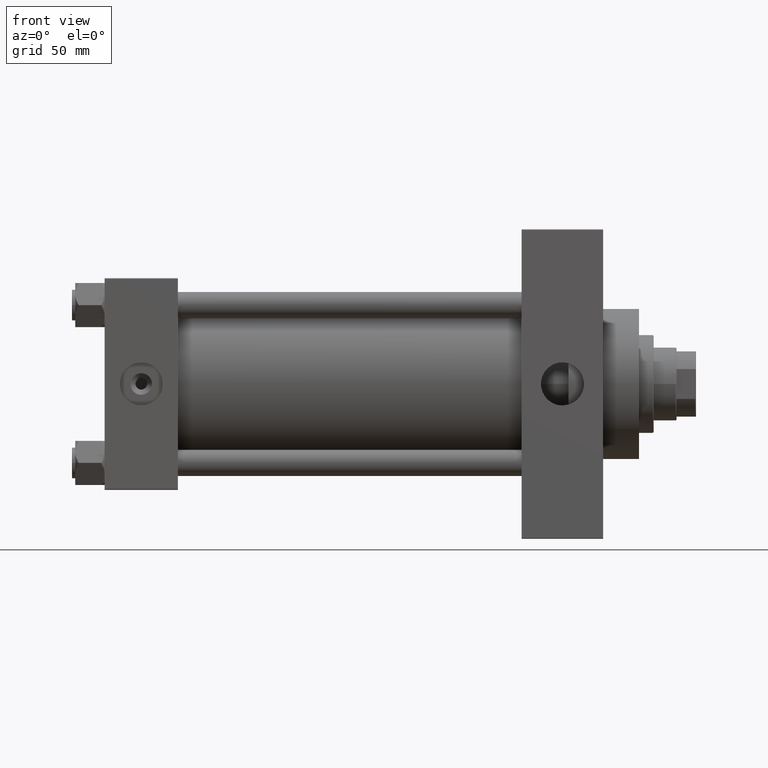
[diagram: clean part render]
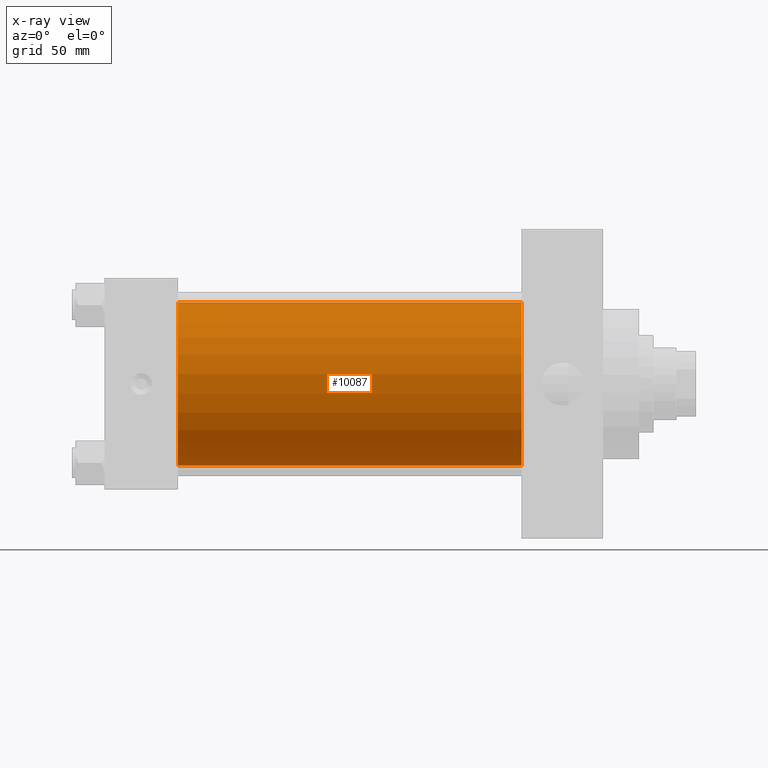
[diagram: x-ray — body ghosted, one internal face saturated and labeled with its STEP entity id]
A machine part, front view, then the same camera in x-ray: the body is ghosted and one INTERNAL B-rep face — a face not visible from any outside direction — is saturated and labeled: STEP entity #10087.
In plain terms, the highlighted cylindrical surface (partial cylindrical patch) has radius 50 mm, axis along (-1, -0, -0).
Its self-contained STEP definition (entity closure, byte-faithful):
#3625 = EDGE_CURVE ( 'NONE', #27056, #18545, #4931, .T. ) ;
#3799 = EDGE_LOOP ( 'NONE', ( #29374, #30603, #10384, #26319 ) ) ;
#4931 = CIRCLE ( 'NONE', #8140, 50.00000000000000000 ) ;
#5658 = DIRECTION ( 'NONE',  ( 1.000000000000000000, 0.000000000000000000, 0.000000000000000000 ) ) ;
#7455 = VECTOR ( 'NONE', #7976, 1000.000000000000000 ) ;
#7964 = DIRECTION ( 'NONE',  ( 1.000000000000000000, 0.000000000000000000, 0.000000000000000000 ) ) ;
#7976 = DIRECTION ( 'NONE',  ( -1.000000000000000000, -0.000000000000000000, -0.000000000000000000 ) ) ;
#8140 = AXIS2_PLACEMENT_3D ( 'NONE', #39829, #7964, #39571 ) ;
#8352 = AXIS2_PLACEMENT_3D ( 'NONE', #33488, #5658, #28940 ) ;
#8486 = VERTEX_POINT ( 'NONE', #29812 ) ;
#10087 = ADVANCED_FACE ( 'NONE', ( #19587 ), #20325, .F. ) ;
#10384 = ORIENTED_EDGE ( 'NONE', *, *, #3625, .F. ) ;
#11034 = CARTESIAN_POINT ( 'NONE',  ( 256.0000000000000000, 3.521148781771555838E-15, -50.00000000000000000 ) ) ;
#12527 = CARTESIAN_POINT ( 'NONE',  ( 45.00000000000000000, 3.521148781771555838E-15, -50.00000000000000000 ) ) ;
#13214 = CIRCLE ( 'NONE', #8352, 50.00000000000000000 ) ;
#18545 = VERTEX_POINT ( 'NONE', #12527 ) ;
#19587 = FACE_OUTER_BOUND ( 'NONE', #3799, .T. ) ;
#19730 = CARTESIAN_POINT ( 'NONE',  ( 256.0000000000000000, 3.521148781771555838E-15, -50.00000000000000000 ) ) ;
#20325 = CYLINDRICAL_SURFACE ( 'NONE', #42668, 50.00000000000000000 ) ;
#23929 = CARTESIAN_POINT ( 'NONE',  ( 256.0000000000000000, -2.602085213965210642E-15, 50.00000000000000000 ) ) ;
#24219 = VECTOR ( 'NONE', #46739, 1000.000000000000000 ) ;
#26319 = ORIENTED_EDGE ( 'NONE', *, *, #46772, .F. ) ;
#27056 = VERTEX_POINT ( 'NONE', #41989 ) ;
#28411 = CARTESIAN_POINT ( 'NONE',  ( 256.0000000000000000, -2.602085213965210642E-15, 0.000000000000000000 ) ) ;
#28807 = EDGE_CURVE ( 'NONE', #8486, #29814, #13214, .T. ) ;
#28940 = DIRECTION ( 'NONE',  ( 0.000000000000000000, 0.000000000000000000, -1.000000000000000000 ) ) ;
#29374 = ORIENTED_EDGE ( 'NONE', *, *, #28807, .T. ) ;
#29812 = CARTESIAN_POINT ( 'NONE',  ( 256.0000000000000000, -2.602085213965210642E-15, 50.00000000000000000 ) ) ;
#29814 = VERTEX_POINT ( 'NONE', #11034 ) ;
#30603 = ORIENTED_EDGE ( 'NONE', *, *, #40396, .T. ) ;
#30610 = LINE ( 'NONE', #19730, #24219 ) ;
#33488 = CARTESIAN_POINT ( 'NONE',  ( 256.0000000000000000, -2.602085213965210642E-15, 0.000000000000000000 ) ) ;
#39571 = DIRECTION ( 'NONE',  ( 0.000000000000000000, 0.000000000000000000, -1.000000000000000000 ) ) ;
#39774 = DIRECTION ( 'NONE',  ( -1.000000000000000000, -0.000000000000000000, -0.000000000000000000 ) ) ;
#39829 = CARTESIAN_POINT ( 'NONE',  ( 45.00000000000000000, -2.602085213965210642E-15, 0.000000000000000000 ) ) ;
#40396 = EDGE_CURVE ( 'NONE', #29814, #18545, #30610, .T. ) ;
#41989 = CARTESIAN_POINT ( 'NONE',  ( 45.00000000000000000, -2.602085213965210642E-15, 50.00000000000000000 ) ) ;
#42668 = AXIS2_PLACEMENT_3D ( 'NONE', #28411, #39774, #43816 ) ;
#43816 = DIRECTION ( 'NONE',  ( 0.000000000000000000, 0.000000000000000000, 1.000000000000000000 ) ) ;
#46739 = DIRECTION ( 'NONE',  ( -1.000000000000000000, -0.000000000000000000, -0.000000000000000000 ) ) ;
#46772 = EDGE_CURVE ( 'NONE', #8486, #27056, #46906, .T. ) ;
#46906 = LINE ( 'NONE', #23929, #7455 ) ;